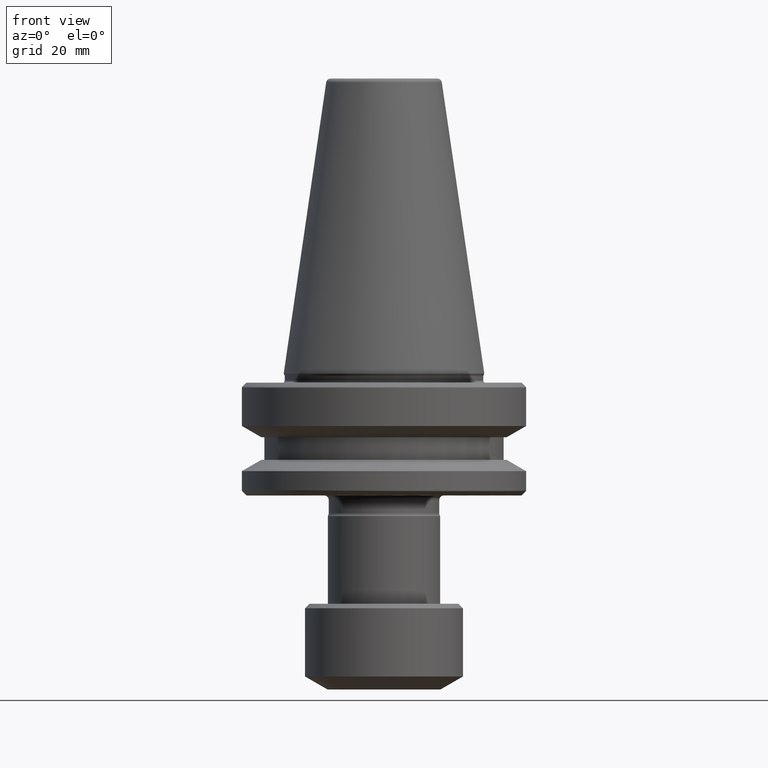
[diagram: clean part render]
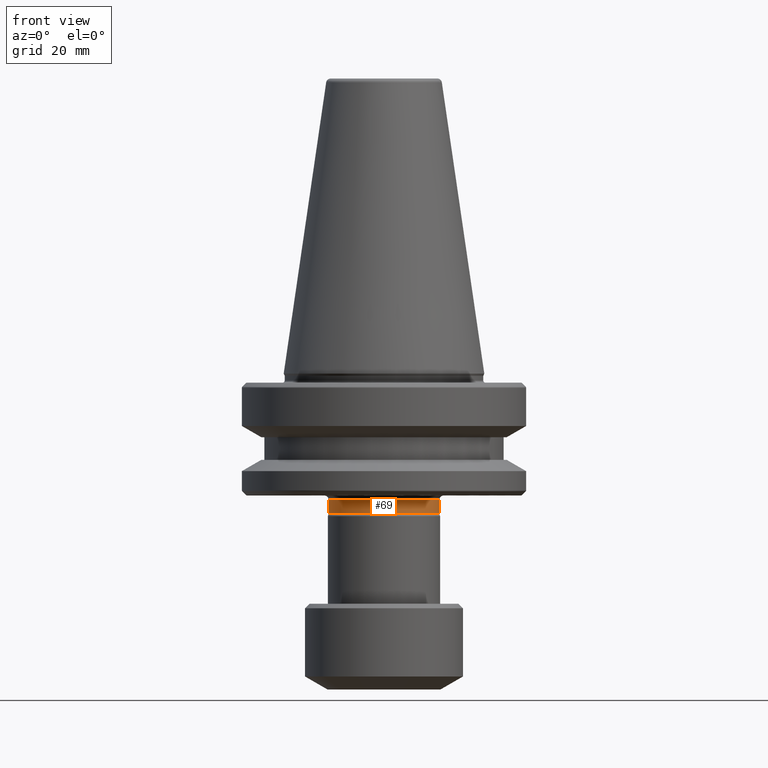
[diagram: same view with one face highlighted and labeled with its STEP entity id]
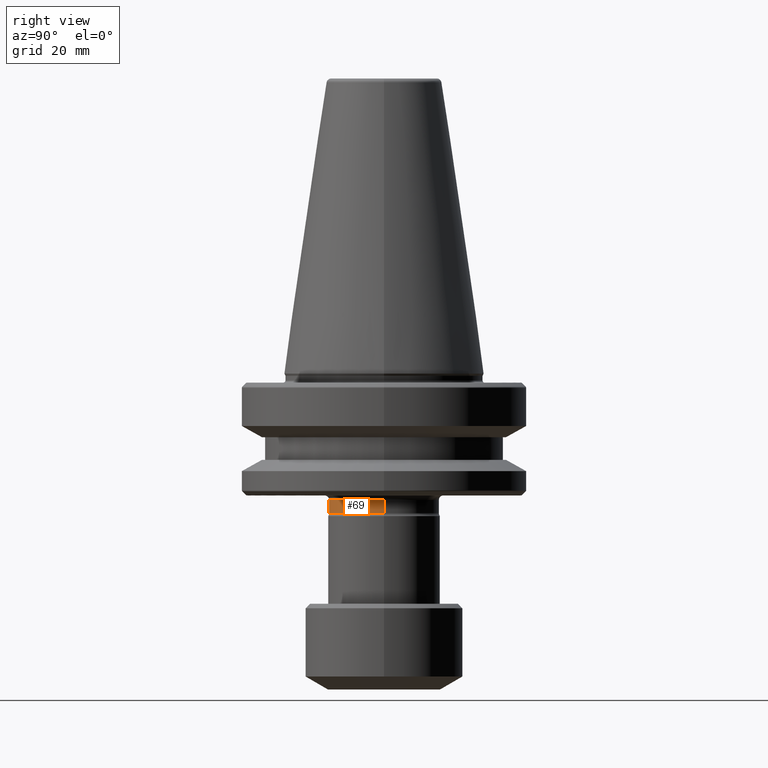
[diagram: same view with one face highlighted and labeled with its STEP entity id]
A machine part, front view. The second image highlights one B-rep face of the part: STEP entity #69.
A second angle (right view) of the same face is appended — the face is thin or edge-on in the first view.
In plain terms, the highlighted cylindrical surface (partial cylindrical patch) has radius 12.25 mm, axis along (-0, -0, 1).
Its self-contained STEP definition (entity closure, byte-faithful):
#9 = CARTESIAN_POINT ( 'NONE',  ( 12.25000000000000000, 0.0000000000000000000, -30.92427035827305600 ) ) ;
#19 = DIRECTION ( 'NONE',  ( 1.000000000000000000, 0.0000000000000000000, 0.0000000000000000000 ) ) ;
#69 = ADVANCED_FACE ( 'NONE', ( #398 ), #374, .T. ) ;
#75 = ORIENTED_EDGE ( 'NONE', *, *, #594, .F. ) ;
#91 = DIRECTION ( 'NONE',  ( -0.0000000000000000000, -0.0000000000000000000, 1.000000000000000000 ) ) ;
#132 = DIRECTION ( 'NONE',  ( 1.000000000000000000, 0.0000000000000000000, 0.0000000000000000000 ) ) ;
#138 = CARTESIAN_POINT ( 'NONE',  ( -12.25000000000000000, 1.561424668912875500E-015, -27.99999999999999600 ) ) ;
#232 = AXIS2_PLACEMENT_3D ( 'NONE', #507, #91, #132 ) ;
#262 = DIRECTION ( 'NONE',  ( 1.000000000000000000, 0.0000000000000000000, 0.0000000000000000000 ) ) ;
#304 = ORIENTED_EDGE ( 'NONE', *, *, #740, .T. ) ;
#374 = CYLINDRICAL_SURFACE ( 'NONE', #1359, 12.25000000000000000 ) ;
#398 = FACE_OUTER_BOUND ( 'NONE', #790, .T. ) ;
#434 = DIRECTION ( 'NONE',  ( -0.0000000000000000000, -0.0000000000000000000, 1.000000000000000000 ) ) ;
#458 = DIRECTION ( 'NONE',  ( -0.0000000000000000000, -0.0000000000000000000, 1.000000000000000000 ) ) ;
#489 = VERTEX_POINT ( 'NONE', #1010 ) ;
#492 = VERTEX_POINT ( 'NONE', #1291 ) ;
#507 = CARTESIAN_POINT ( 'NONE',  ( 0.0000000000000000000, 0.0000000000000000000, -27.99999999999999600 ) ) ;
#594 = EDGE_CURVE ( 'NONE', #489, #738, #739, .T. ) ;
#649 = VECTOR ( 'NONE', #1165, 1000.000000000000000 ) ;
#650 = LINE ( 'NONE', #1371, #649 ) ;
#665 = CIRCLE ( 'NONE', #232, 12.25000000000000000 ) ;
#667 = CIRCLE ( 'NONE', #1487, 12.25000000000000000 ) ;
#731 = VECTOR ( 'NONE', #434, 1000.000000000000000 ) ;
#738 = VERTEX_POINT ( 'NONE', #138 ) ;
#739 = LINE ( 'NONE', #1402, #731 ) ;
#740 = EDGE_CURVE ( 'NONE', #489, #1365, #667, .T. ) ;
#767 = EDGE_CURVE ( 'NONE', #738, #492, #665, .T. ) ;
#790 = EDGE_LOOP ( 'NONE', ( #75, #304, #1186, #1008 ) ) ;
#815 = EDGE_CURVE ( 'NONE', #1365, #492, #650, .T. ) ;
#894 = CARTESIAN_POINT ( 'NONE',  ( 0.0000000000000000000, 0.0000000000000000000, -30.92427035827305600 ) ) ;
#1008 = ORIENTED_EDGE ( 'NONE', *, *, #767, .F. ) ;
#1010 = CARTESIAN_POINT ( 'NONE',  ( -12.25000000000000000, 1.500192328955507700E-015, -30.92427035827305600 ) ) ;
#1165 = DIRECTION ( 'NONE',  ( -0.0000000000000000000, -0.0000000000000000000, 1.000000000000000000 ) ) ;
#1186 = ORIENTED_EDGE ( 'NONE', *, *, #815, .T. ) ;
#1226 = DIRECTION ( 'NONE',  ( -0.0000000000000000000, -0.0000000000000000000, 1.000000000000000000 ) ) ;
#1263 = CARTESIAN_POINT ( 'NONE',  ( 0.0000000000000000000, 0.0000000000000000000, 88.34764052968309000 ) ) ;
#1291 = CARTESIAN_POINT ( 'NONE',  ( 12.25000000000000000, 0.0000000000000000000, -27.99999999999999600 ) ) ;
#1359 = AXIS2_PLACEMENT_3D ( 'NONE', #1263, #458, #262 ) ;
#1365 = VERTEX_POINT ( 'NONE', #9 ) ;
#1371 = CARTESIAN_POINT ( 'NONE',  ( 12.25000000000000000, 0.0000000000000000000, 88.34764052968309000 ) ) ;
#1402 = CARTESIAN_POINT ( 'NONE',  ( -12.25000000000000000, 1.500192328955507700E-015, 88.34764052968309000 ) ) ;
#1487 = AXIS2_PLACEMENT_3D ( 'NONE', #894, #1226, #19 ) ;